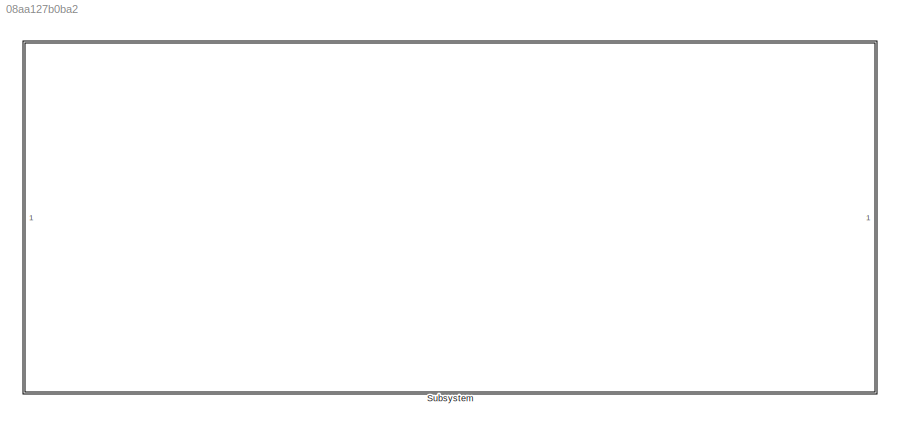
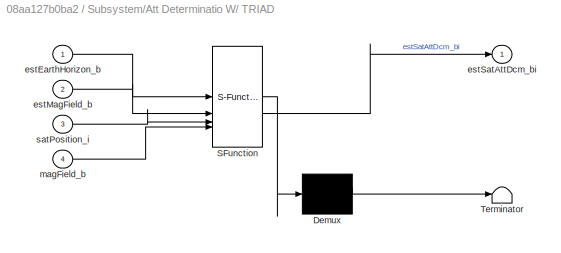
MODEL slx_08aa127b0ba2
KIND library
CONFIG AbsTol = auto
CONFIG EnableMultiTasking = off
CONFIG FixedStep = auto
CONFIG MaxStep = auto
CONFIG MinStep = auto
CONFIG RelTol = 1e-3
CONFIG SampleTimeConstraint = Unconstrained
CONFIG SolverName = VariableStepAuto
CONFIG StartTime = 0.0
CONFIG StopTime = 10.0
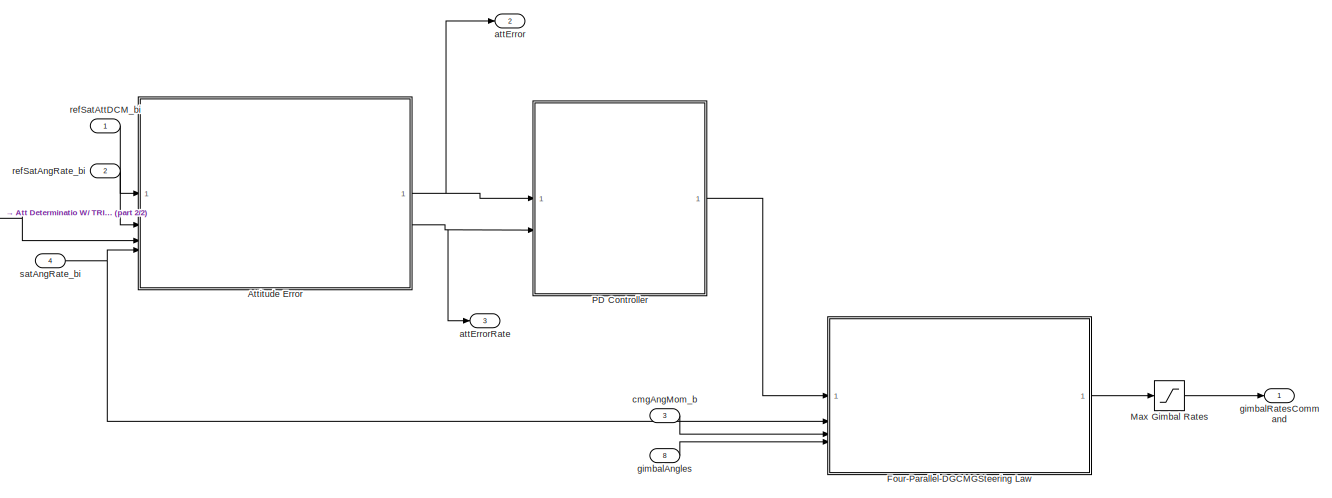
[diagram: Subsystem - part 1/2, right side, full height]
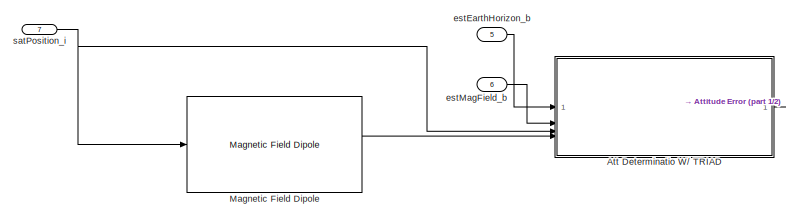
[diagram: Subsystem - part 2/2, middle left region]
BLOCK [SubSystem] Subsystem
BLOCK [SubSystem] Subsystem/Att Determinatio W// TRIAD
  ErrorFcn = Stateflow.Translate.translate
  PermitHierarchicalResolution = ExplicitOnly
  SFBlockType = MATLAB Function
  TreatAsAtomicUnit = on
BLOCK [Demux] Subsystem/Att Determinatio W// TRIAD/ Demux 
  Outputs = 1
BLOCK [S-Function] Subsystem/Att Determinatio W// TRIAD/ SFunction 
  EnableBusSupport = off
  FunctionName = sf_sfun
  PortCounts = [4 2]
  SFcnIsStateOwnerBlock = off
  SFunctionDeploymentMode = off
  Tag = Stateflow S-Function 4
BLOCK [Terminator] Subsystem/Att Determinatio W// TRIAD/ Terminator 
BLOCK [Inport] Subsystem/Att Determinatio W// TRIAD/estEarthHorizon_b
BLOCK [Inport] Subsystem/Att Determinatio W// TRIAD/estMagField_b
  Port = 2
BLOCK [Outport] Subsystem/Att Determinatio W// TRIAD/estSatAttDcm_bi
BLOCK [Inport] Subsystem/Att Determinatio W// TRIAD/magField_b
  Port = 4
BLOCK [Inport] Subsystem/Att Determinatio W// TRIAD/satPosition_i
  Port = 3
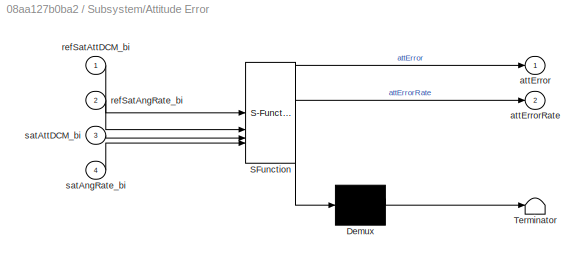
BLOCK [SubSystem] Subsystem/Attitude Error
  ErrorFcn = Stateflow.Translate.translate
  PermitHierarchicalResolution = ExplicitOnly
  SFBlockType = MATLAB Function
  TreatAsAtomicUnit = on
BLOCK [Demux] Subsystem/Attitude Error/ Demux 
  Outputs = 1
BLOCK [S-Function] Subsystem/Attitude Error/ SFunction 
  EnableBusSupport = off
  FunctionName = sf_sfun
  PortCounts = [4 3]
  SFcnIsStateOwnerBlock = off
  SFunctionDeploymentMode = off
  Tag = Stateflow S-Function 2
BLOCK [Terminator] Subsystem/Attitude Error/ Terminator 
BLOCK [Outport] Subsystem/Attitude Error/attError
BLOCK [Outport] Subsystem/Attitude Error/attErrorRate
  Port = 2
BLOCK [Inport] Subsystem/Attitude Error/refSatAngRate_bi
  Port = 2
BLOCK [Inport] Subsystem/Attitude Error/refSatAttDCM_bi
BLOCK [Inport] Subsystem/Attitude Error/satAngRate_bi
  Port = 4
BLOCK [Inport] Subsystem/Attitude Error/satAttDCM_bi
  Port = 3
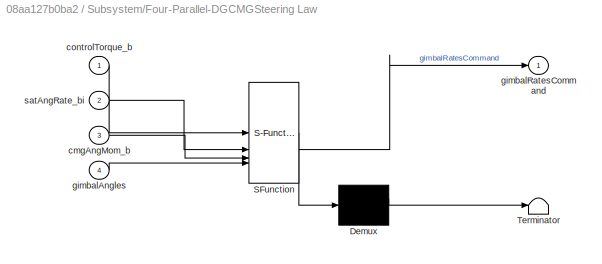
BLOCK [SubSystem] Subsystem/Four-Parallel-DGCMGSteering Law
  ErrorFcn = Stateflow.Translate.translate
  PermitHierarchicalResolution = ExplicitOnly
  SFBlockType = MATLAB Function
  TreatAsAtomicUnit = on
BLOCK [Demux] Subsystem/Four-Parallel-DGCMGSteering Law/ Demux 
  Outputs = 1
BLOCK [S-Function] Subsystem/Four-Parallel-DGCMGSteering Law/ SFunction 
  EnableBusSupport = off
  FunctionName = sf_sfun
  Parameters = innerAngDistGain,outerAngDistGain,rotorAngRate,rotorInertia
  PortCounts = [4 2]
  SFcnIsStateOwnerBlock = off
  SFunctionDeploymentMode = off
  Tag = Stateflow S-Function 3
BLOCK [Terminator] Subsystem/Four-Parallel-DGCMGSteering Law/ Terminator 
BLOCK [Inport] Subsystem/Four-Parallel-DGCMGSteering Law/cmgAngMom_b
  Port = 3
BLOCK [Inport] Subsystem/Four-Parallel-DGCMGSteering Law/controlTorque_b
BLOCK [Inport] Subsystem/Four-Parallel-DGCMGSteering Law/gimbalAngles
  Port = 4
BLOCK [Outport] Subsystem/Four-Parallel-DGCMGSteering Law/gimbalRatesCommand
BLOCK [Inport] Subsystem/Four-Parallel-DGCMGSteering Law/satAngRate_bi
  Port = 2
BLOCK [Reference] Subsystem/Magnetic Field Dipole  REF=magnetometerSensorHW_sl/Magnetometer Measurments/Magnetic Field Dipole
  SourceBlock = magnetometerSensorHW_sl/Magnetometer Measurments/Magnetic Field Dipole
  SourceType = SubSystem
BLOCK [Saturate] Subsystem/Max Gimbal Rates
  LowerLimit = -maxGimbalRate
  UpperLimit = maxGimbalRate
  ZeroCross = off
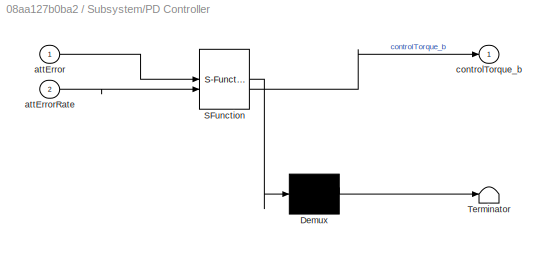
BLOCK [SubSystem] Subsystem/PD Controller
  ErrorFcn = Stateflow.Translate.translate
  PermitHierarchicalResolution = ExplicitOnly
  SFBlockType = MATLAB Function
  TreatAsAtomicUnit = on
BLOCK [Demux] Subsystem/PD Controller/ Demux 
  Outputs = 1
BLOCK [S-Function] Subsystem/PD Controller/ SFunction 
  EnableBusSupport = off
  FunctionName = sf_sfun
  Parameters = kD,kP,satInertiaTensor
  PortCounts = [2 2]
  SFcnIsStateOwnerBlock = off
  SFunctionDeploymentMode = off
  Tag = Stateflow S-Function 1
BLOCK [Terminator] Subsystem/PD Controller/ Terminator 
BLOCK [Inport] Subsystem/PD Controller/attError
BLOCK [Inport] Subsystem/PD Controller/attErrorRate
  Port = 2
BLOCK [Outport] Subsystem/PD Controller/controlTorque_b
BLOCK [Outport] Subsystem/attError
  Port = 2
BLOCK [Outport] Subsystem/attErrorRate
  Port = 3
BLOCK [Inport] Subsystem/cmgAngMom_b
  Port = 3
BLOCK [Inport] Subsystem/estEarthHorizon_b
  NameLocation = top
  Port = 5
BLOCK [Inport] Subsystem/estMagField_b
  Port = 6
BLOCK [Inport] Subsystem/gimbalAngles
  Port = 8
BLOCK [Outport] Subsystem/gimbalRatesCommand
BLOCK [Inport] Subsystem/refSatAngRate_bi
  Port = 2
BLOCK [Inport] Subsystem/refSatAttDCM_bi
BLOCK [Inport] Subsystem/satAngRate_bi
  Port = 4
BLOCK [Inport] Subsystem/satPosition_i
  Port = 7
LINE Subsystem/Att Determinatio W// TRIAD:1 -> Subsystem/Attitude Error:3
NET Subsystem/Attitude Error:1 -> Subsystem/PD Controller:1, Subsystem/attError:1
NET Subsystem/Attitude Error:2 -> Subsystem/PD Controller:2, Subsystem/attErrorRate:1
LINE Subsystem/Four-Parallel-DGCMGSteering Law:1 -> Subsystem/Max Gimbal Rates:1
LINE Subsystem/Magnetic Field Dipole:1 -> Subsystem/Att Determinatio W// TRIAD:4
LINE Subsystem/Max Gimbal Rates:1 -> Subsystem/gimbalRatesCommand:1
LINE Subsystem/PD Controller:1 -> Subsystem/Four-Parallel-DGCMGSteering Law:1
LINE Subsystem/cmgAngMom_b:1 -> Subsystem/Four-Parallel-DGCMGSteering Law:3
LINE Subsystem/estEarthHorizon_b:1 -> Subsystem/Att Determinatio W// TRIAD:1
LINE Subsystem/estMagField_b:1 -> Subsystem/Att Determinatio W// TRIAD:2
LINE Subsystem/gimbalAngles:1 -> Subsystem/Four-Parallel-DGCMGSteering Law:4
LINE Subsystem/refSatAngRate_bi:1 -> Subsystem/Attitude Error:2
LINE Subsystem/refSatAttDCM_bi:1 -> Subsystem/Attitude Error:1
NET Subsystem/satAngRate_bi:1 -> Subsystem/Attitude Error:4, Subsystem/Four-Parallel-DGCMGSteering Law:2
NET Subsystem/satPosition_i:1 -> Subsystem/Att Determinatio W// TRIAD:3, Subsystem/Magnetic Field Dipole:1
note: NET lines group one-source signal fan-out (src -> all destinations, sorted); 1:1 wires keep LINE
CHART Subsystem/PD Controller states=1 transitions=1
  STATE_LABEL 'eML_blk_kernel()'
  STATE_LABEL 'SCRIPT:\nfunction controlTorque_b = satAttPDControl( ...\n    attError,attErrorRate, ... % Error Inputs\n    kP, kD, satInertiaTensor)... % Parameters\n%-------------------------------------------------------------------------------\n% Construct Gain Matrices\n\nKP = diag(kP);\nKD = diag(kD);\n\n\n%-------------------------------------------------------------------------------\n% Calcualte control input U\nu =...<+153ch>'
CHART Subsystem/Attitude Error states=1 transitions=1
  STATE_LABEL 'eML_blk_kernel()'
  STATE_LABEL 'SCRIPT:\nfunction [attError,attErrorRate]=attError( ...\n    refSatAttDCM_bi,refSatAngRate_bi, ...% Reference State inputs ...\n    satAttDCM_bi,satAngRate_bi... % Actual State Input\n    )\n%-------------------------------------------------------------------------------\n% Construct angular rate skew symmetric matrix\nomegaSkew = [0 -refSatAngRate_bi(3) refSatAngRate_bi(2);\n             refSatAngRate_bi...<+744ch>'
CHART Subsystem/Four-Parallel-DGCMGSteering Law states=1 transitions=1
  STATE_LABEL 'eML_blk_kernel()'
  STATE_LABEL 'SCRIPT:\nfunction gimbalRatesCommand = dgcmgSteeringLaw( ...\n    controlTorque_b,satAngRate_bi,cmgAngMom_b,gimbalAngles,... %Inputs\n    rotorInertia,innerAngDistGain,outerAngDistGain,... % Parameters\n      rotorAngRate)\n%-------------------------------------------------------------------------------\n% Initialize Variables\n\n% Commanded Gimbal Rates\ngimbalRatesCommand = zeros(8,1);\n\n% Inner and Outer...<+3065ch>'
CHART Subsystem/Att Determinatio W// TRIAD states=1 transitions=1
  STATE_LABEL 'eML_blk_kernel()'
  STATE_LABEL 'SCRIPT:\nfunction estSatAttDcm_bi = triadAttDet( ...\n    estEarthHorizon_b,estMagField_b,satPosition_i,magField_b... % Inputs\n    ... % Parameters\n    )\n%-------------------------------------------------------------------------------\n% Initialize direction Vecotrs\n\n% Earth horizon direction measurement d_b1\nd_b1 = estEarthHorizon_b./norm(estEarthHorizon_b);\n\n%Known earth horizon directio d_i1\nd_i1 ...<+718ch>'
CHART  states=0 transitions=0
CHART  states=0 transitions=0
CHART  states=0 transitions=0
CHART  states=0 transitions=0
